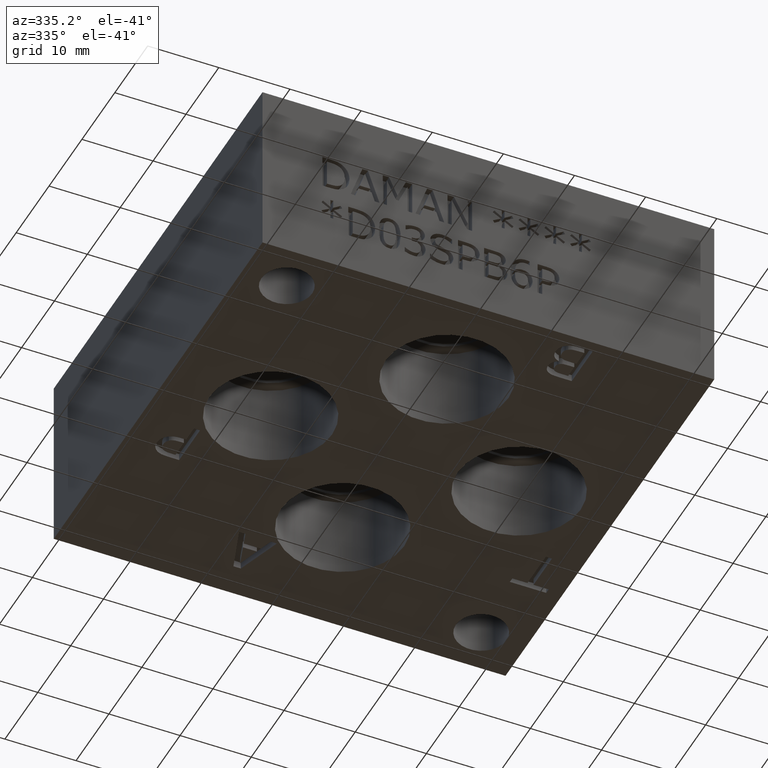
[diagram: clean part render]
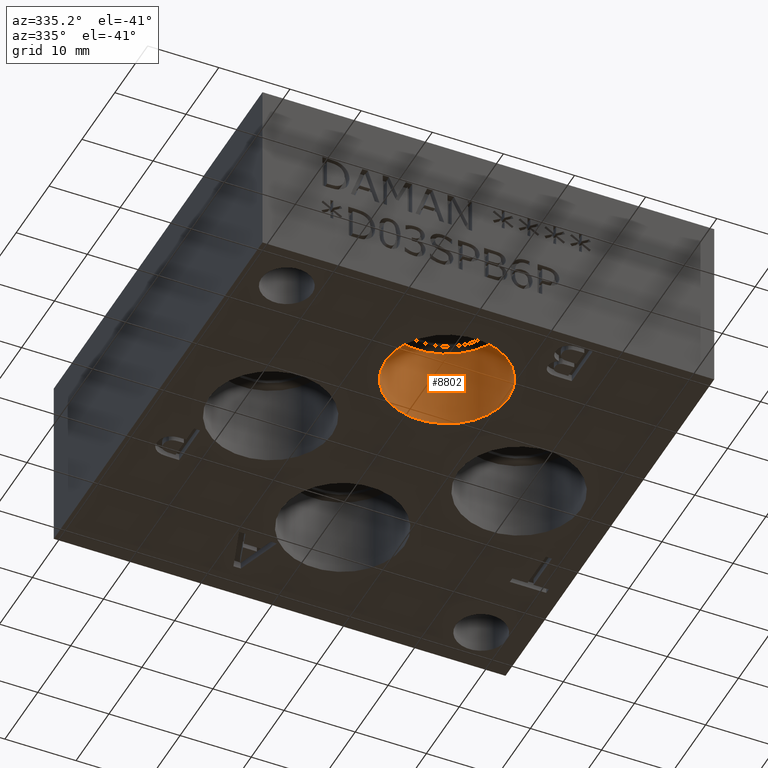
[diagram: same view with one face highlighted and labeled with its STEP entity id]
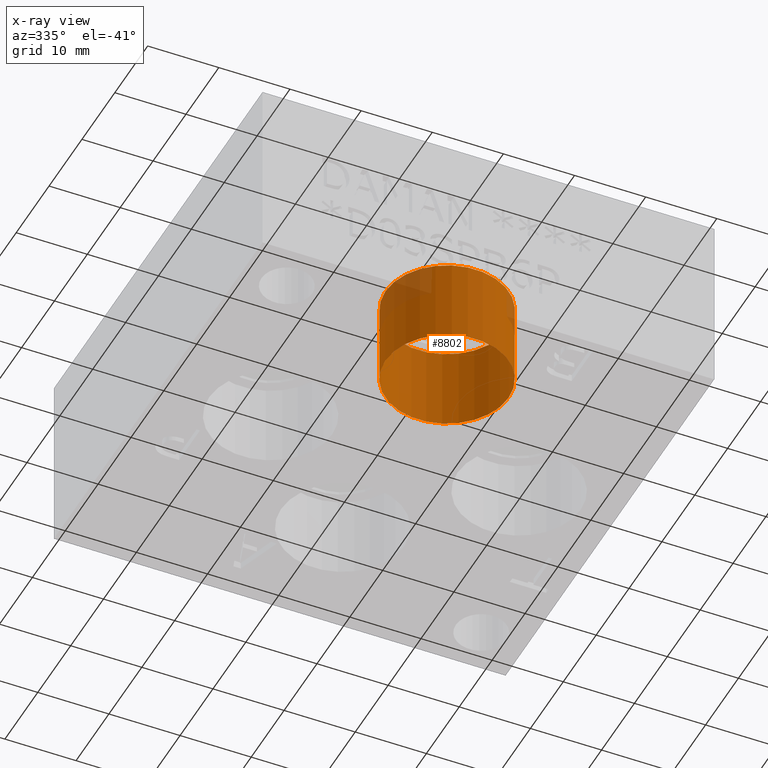
[diagram: x-ray of the same camera — body ghosted, the highlighted face saturated]
A machine part, auxiliary view. The second image highlights one B-rep face of the part: STEP entity #8802.
The next image is the same camera in x-ray: the body ghosted, the highlighted face saturated — about 9% of this face is hidden behind the body in this view.
In plain terms, the highlighted cylindrical surface (bore or boss wall) has radius 8.6487 mm, axis along (0, 0, -1).
Its self-contained STEP definition (entity closure, byte-faithful):
#20=CYLINDRICAL_SURFACE('',#9160,8.6487);
#58=CIRCLE('',#9089,8.6487);
#59=CIRCLE('',#9090,8.6487);
#79=CIRCLE('',#9157,8.6487);
#80=CIRCLE('',#9158,8.6487);
#887=FACE_OUTER_BOUND('',#1381,.T.);
#1381=EDGE_LOOP('',(#7672,#7673,#7674,#7675,#7676,#7677));
#2261=LINE('',#14949,#3117);
#3117=VECTOR('',#10693,8.6487);
#4085=VERTEX_POINT('',#14582);
#4086=VERTEX_POINT('',#14583);
#4171=VERTEX_POINT('',#14942);
#4172=VERTEX_POINT('',#14943);
#5234=EDGE_CURVE('',#4085,#4086,#58,.T.);
#5235=EDGE_CURVE('',#4086,#4085,#59,.T.);
#5361=EDGE_CURVE('',#4171,#4172,#79,.T.);
#5362=EDGE_CURVE('',#4172,#4171,#80,.T.);
#5364=EDGE_CURVE('',#4086,#4172,#2261,.T.);
#7672=ORIENTED_EDGE('',*,*,#5234,.F.);
#7673=ORIENTED_EDGE('',*,*,#5235,.F.);
#7674=ORIENTED_EDGE('',*,*,#5364,.T.);
#7675=ORIENTED_EDGE('',*,*,#5361,.F.);
#7676=ORIENTED_EDGE('',*,*,#5362,.F.);
#7677=ORIENTED_EDGE('',*,*,#5364,.F.);
#8802=ADVANCED_FACE('',(#887),#20,.F.);
#9089=AXIS2_PLACEMENT_3D('',#14584,#10455,#10456);
#9090=AXIS2_PLACEMENT_3D('',#14585,#10457,#10458);
#9157=AXIS2_PLACEMENT_3D('',#14944,#10685,#10686);
#9158=AXIS2_PLACEMENT_3D('',#14945,#10687,#10688);
#9160=AXIS2_PLACEMENT_3D('',#14948,#10691,#10692);
#10455=DIRECTION('center_axis',(0.,0.,1.));
#10456=DIRECTION('ref_axis',(1.,0.,0.));
#10457=DIRECTION('center_axis',(0.,0.,1.));
#10458=DIRECTION('ref_axis',(1.,0.,0.));
#10685=DIRECTION('center_axis',(0.,0.,-1.));
#10686=DIRECTION('ref_axis',(1.,0.,0.));
#10687=DIRECTION('center_axis',(0.,0.,-1.));
#10688=DIRECTION('ref_axis',(1.,0.,0.));
#10691=DIRECTION('center_axis',(0.,0.,-1.));
#10692=DIRECTION('ref_axis',(1.,0.,0.));
#10693=DIRECTION('',(0.,0.,1.));
#14582=CARTESIAN_POINT('',(41.1861,14.2748,0.));
#14583=CARTESIAN_POINT('',(23.8887,14.2748,0.));
#14584=CARTESIAN_POINT('Origin',(32.5374,14.2748,0.));
#14585=CARTESIAN_POINT('Origin',(32.5374,14.2748,0.));
#14942=CARTESIAN_POINT('',(41.1861,14.2748,11.7348));
#14943=CARTESIAN_POINT('',(23.8887,14.2748,11.7348));
#14944=CARTESIAN_POINT('Origin',(32.5374,14.2748,11.7348));
#14945=CARTESIAN_POINT('Origin',(32.5374,14.2748,11.7348));
#14948=CARTESIAN_POINT('Origin',(32.5374,14.2748,5.8674));
#14949=CARTESIAN_POINT('',(23.8887,14.2748,5.8674));